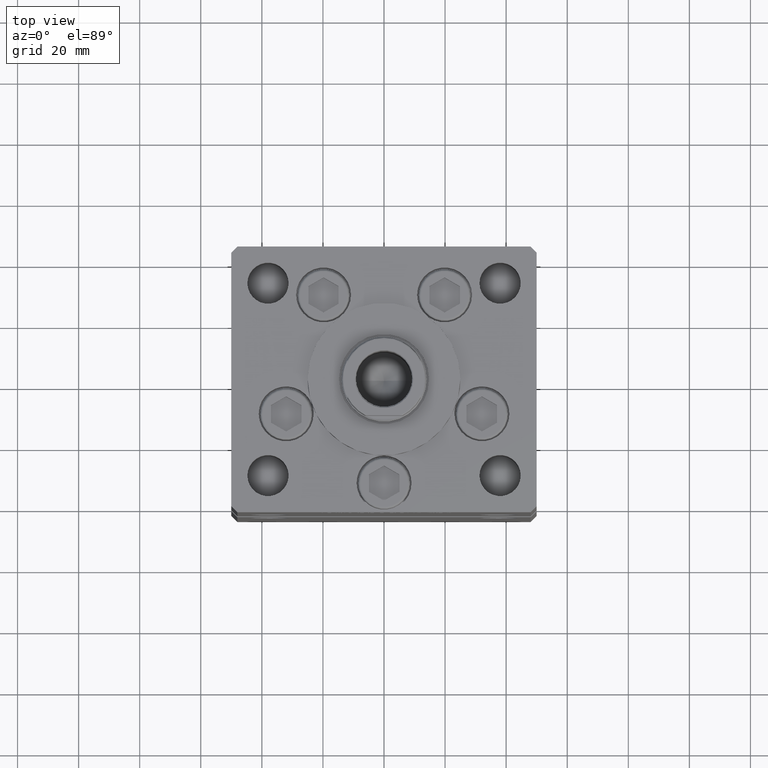
[diagram: clean part render]
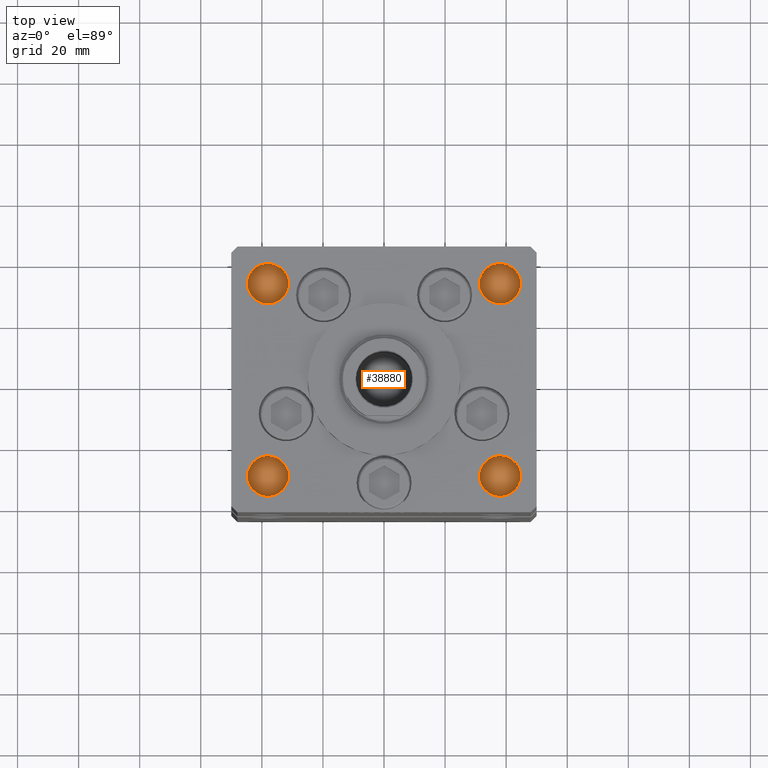
[diagram: same view with one face highlighted and labeled with its STEP entity id]
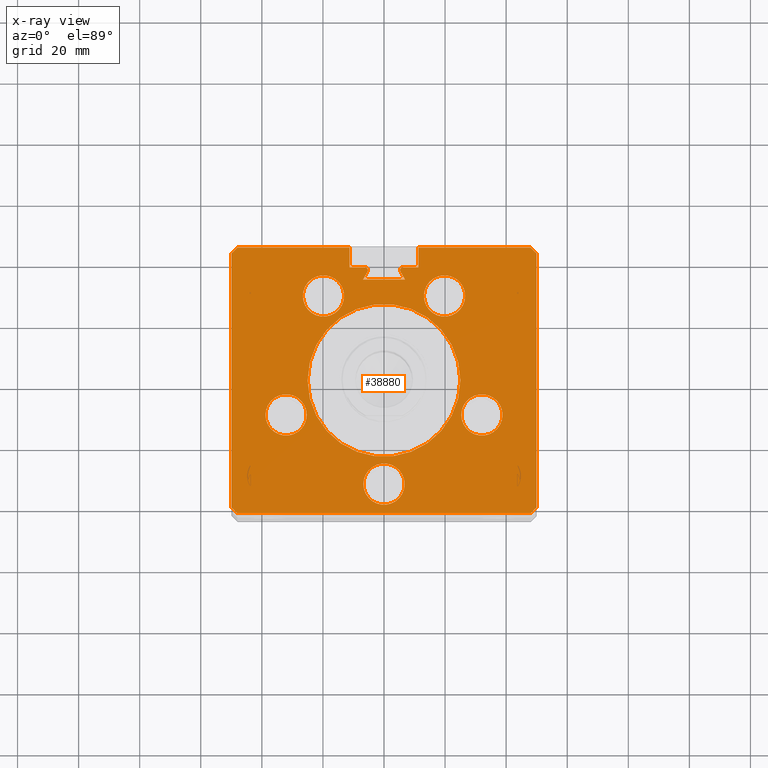
[diagram: x-ray of the same camera — body ghosted, the highlighted face saturated]
A machine part, top view. The second image highlights one B-rep face of the part: STEP entity #38880.
The next image is the same camera in x-ray: the body ghosted, the highlighted face saturated — about 0% of this face is hidden behind the body in this view.
In plain terms, the highlighted planar face has unit normal (0, 0, -1).
Its self-contained STEP definition (entity closure, byte-faithful):
#438 = CARTESIAN_POINT ( 'NONE',  ( -6.876153656360465050, 32.99999999999986500, 148.5000000000000000 ) ) ;
#789 = ORIENTED_EDGE ( 'NONE', *, *, #37830, .F. ) ;
#835 = LINE ( 'NONE', #25566, #28087 ) ;
#1182 = DIRECTION ( 'NONE',  ( 1.000000000000000000, 0.000000000000000000, 0.000000000000000000 ) ) ;
#1229 = VECTOR ( 'NONE', #19235, 1000.000000000000000 ) ;
#2079 = AXIS2_PLACEMENT_3D ( 'NONE', #28717, #45159, #4236 ) ;
#2138 = DIRECTION ( 'NONE',  ( -0.000000000000000000, 0.000000000000000000, 1.000000000000000000 ) ) ;
#2285 = CARTESIAN_POINT ( 'NONE',  ( 0.000000000000000000, 0.000000000000000000, 148.5000000000000000 ) ) ;
#2810 = DIRECTION ( 'NONE',  ( 1.000000000000000000, 0.000000000000000000, 0.000000000000000000 ) ) ;
#2826 = LINE ( 'NONE', #19509, #1229 ) ;
#2988 = DIRECTION ( 'NONE',  ( 0.000000000000000000, 0.000000000000000000, -1.000000000000000000 ) ) ;
#3041 = AXIS2_PLACEMENT_3D ( 'NONE', #29740, #46171, #41597 ) ;
#3063 = VERTEX_POINT ( 'NONE', #47047 ) ;
#3075 = ORIENTED_EDGE ( 'NONE', *, *, #32994, .F. ) ;
#3082 = EDGE_CURVE ( 'NONE', #47106, #15267, #10176, .T. ) ;
#3213 = CARTESIAN_POINT ( 'NONE',  ( 11.24999999999999645, 37.00000000000000000, 148.5000000000000000 ) ) ;
#3293 = CARTESIAN_POINT ( 'NONE',  ( -25.30550741379015278, -11.33333333333334458, 148.5000000000000000 ) ) ;
#3343 = FACE_BOUND ( 'NONE', #10527, .T. ) ;
#3938 = DIRECTION ( 'NONE',  ( 1.000000000000000000, 0.000000000000000000, 0.000000000000000000 ) ) ;
#4044 = CARTESIAN_POINT ( 'NONE',  ( -5.375042956467946276, 35.59999999999899245, 148.5000000000000000 ) ) ;
#4173 = EDGE_CURVE ( 'NONE', #14696, #15729, #2826, .T. ) ;
#4236 = DIRECTION ( 'NONE',  ( 1.000000000000000000, 0.000000000000000000, 0.000000000000000000 ) ) ;
#4310 = LINE ( 'NONE', #12659, #35891 ) ;
#5100 = VECTOR ( 'NONE', #47616, 1000.000000000000000 ) ;
#5326 = EDGE_CURVE ( 'NONE', #46769, #22744, #23353, .T. ) ;
#5697 = CARTESIAN_POINT ( 'NONE',  ( -19.44653440471351757, 11.22746187336663404, 148.5000000000000000 ) ) ;
#5771 = CARTESIAN_POINT ( 'NONE',  ( 25.30550741379015278, -11.33333333333334103, 148.5000000000000000 ) ) ;
#5856 = DIRECTION ( 'NONE',  ( 1.000000000000000000, 0.000000000000000000, 0.000000000000000000 ) ) ;
#6442 = CARTESIAN_POINT ( 'NONE',  ( 6.183333333333996151, 37.00000000000000000, 148.5000000000000000 ) ) ;
#6956 = CIRCLE ( 'NONE', #44758, 6.749999999999999112 ) ;
#7225 = EDGE_CURVE ( 'NONE', #21145, #34570, #19446, .T. ) ;
#7274 = CARTESIAN_POINT ( 'NONE',  ( 49.99999999999998579, -41.49999999999999289, 148.5000000000000000 ) ) ;
#7376 = CARTESIAN_POINT ( 'NONE',  ( 19.82068048781374259, 27.62500000000000000, 148.5000000000000000 ) ) ;
#7656 = ORIENTED_EDGE ( 'NONE', *, *, #52000, .T. ) ;
#7793 = VERTEX_POINT ( 'NONE', #438 ) ;
#7954 = LINE ( 'NONE', #21373, #48373 ) ;
#8079 = VECTOR ( 'NONE', #29245, 1000.000000000000000 ) ;
#8224 = CIRCLE ( 'NONE', #3041, 6.749999999999999112 ) ;
#8543 = CARTESIAN_POINT ( 'NONE',  ( 0.000000000000000000, 32.99999999999986500, 148.5000000000000000 ) ) ;
#8602 = CARTESIAN_POINT ( 'NONE',  ( -49.99999999999998579, -41.49999999999999289, 148.5000000000000000 ) ) ;
#8701 = FACE_BOUND ( 'NONE', #13803, .T. ) ;
#9042 = ORIENTED_EDGE ( 'NONE', *, *, #10499, .T. ) ;
#9445 = CARTESIAN_POINT ( 'NONE',  ( 6.876153656360465050, 32.99999999999986500, 148.5000000000000000 ) ) ;
#9735 = LINE ( 'NONE', #5697, #12675 ) ;
#10009 = CARTESIAN_POINT ( 'NONE',  ( -47.99999999999998579, -43.50000000000000000, 148.5000000000000000 ) ) ;
#10057 = CARTESIAN_POINT ( 'NONE',  ( -11.24999999999999645, 37.00000000000000000, 148.5000000000000000 ) ) ;
#10106 = ORIENTED_EDGE ( 'NONE', *, *, #11907, .F. ) ;
#10176 = LINE ( 'NONE', #42750, #47596 ) ;
#10487 = EDGE_CURVE ( 'NONE', #36071, #16057, #24429, .T. ) ;
#10499 = EDGE_CURVE ( 'NONE', #15267, #44690, #20645, .T. ) ;
#10527 = EDGE_LOOP ( 'NONE', ( #15861, #32138 ) ) ;
#10718 = DIRECTION ( 'NONE',  ( -3.344045254895050973E-16, -1.000000000000000000, 0.000000000000000000 ) ) ;
#10724 = CARTESIAN_POINT ( 'NONE',  ( 2.081899558550500280E-15, -34.00000000000000000, 148.5000000000000000 ) ) ;
#10990 = VECTOR ( 'NONE', #31509, 1000.000000000000114 ) ;
#11304 = DIRECTION ( 'NONE',  ( -0.7071067811865474617, -0.7071067811865474617, 0.000000000000000000 ) ) ;
#11399 = DIRECTION ( 'NONE',  ( 1.000000000000000000, 0.000000000000000000, 0.000000000000000000 ) ) ;
#11416 = FACE_BOUND ( 'NONE', #18073, .T. ) ;
#11514 = DIRECTION ( 'NONE',  ( -0.000000000000000000, -1.000000000000000000, 0.000000000000000000 ) ) ;
#11568 = AXIS2_PLACEMENT_3D ( 'NONE', #14504, #2138, #47346 ) ;
#11589 = DIRECTION ( 'NONE',  ( 0.4999999999999987788, 0.8660254037844392627, 0.000000000000000000 ) ) ;
#11907 = EDGE_CURVE ( 'NONE', #34570, #21145, #16698, .T. ) ;
#12210 = DIRECTION ( 'NONE',  ( 0.000000000000000000, 0.000000000000000000, -1.000000000000000000 ) ) ;
#12370 = DIRECTION ( 'NONE',  ( 1.000000000000000000, 0.000000000000000000, 0.000000000000000000 ) ) ;
#12659 = CARTESIAN_POINT ( 'NONE',  ( -11.24999999999999645, 43.50000000000000000, 148.5000000000000000 ) ) ;
#12675 = VECTOR ( 'NONE', #11589, 1000.000000000000114 ) ;
#12847 = CARTESIAN_POINT ( 'NONE',  ( -6.749999999999997335, -34.00000000000000000, 148.5000000000000000 ) ) ;
#12999 = DIRECTION ( 'NONE',  ( -1.000000000000000000, 0.000000000000000000, -0.000000000000000000 ) ) ;
#13537 = EDGE_CURVE ( 'NONE', #38013, #28192, #8224, .T. ) ;
#13560 = CARTESIAN_POINT ( 'NONE',  ( -5.249999999999995559, 36.06666666666599497, 148.5000000000000000 ) ) ;
#13569 = CARTESIAN_POINT ( 'NONE',  ( -13.07068048781374259, 27.62499999999999645, 148.5000000000000000 ) ) ;
#13803 = EDGE_LOOP ( 'NONE', ( #50861, #10106 ) ) ;
#13920 = DIRECTION ( 'NONE',  ( 0.000000000000000000, 0.000000000000000000, 1.000000000000000000 ) ) ;
#13981 = CARTESIAN_POINT ( 'NONE',  ( 0.000000000000000000, 37.00000000000000000, 148.5000000000000000 ) ) ;
#14412 = ORIENTED_EDGE ( 'NONE', *, *, #3082, .T. ) ;
#14457 = AXIS2_PLACEMENT_3D ( 'NONE', #45668, #41367, #33028 ) ;
#14504 = CARTESIAN_POINT ( 'NONE',  ( 0.000000000000000000, 0.000000000000000000, 148.5000000000000000 ) ) ;
#14667 = CARTESIAN_POINT ( 'NONE',  ( -11.24999999999999645, 43.50000000000000000, 148.5000000000000000 ) ) ;
#14696 = VERTEX_POINT ( 'NONE', #47579 ) ;
#14744 = CARTESIAN_POINT ( 'NONE',  ( 50.00000000000001421, 41.49999999999999289, 148.5000000000000000 ) ) ;
#15267 = VERTEX_POINT ( 'NONE', #10057 ) ;
#15375 = DIRECTION ( 'NONE',  ( 1.000000000000000000, 0.000000000000000000, 0.000000000000000000 ) ) ;
#15426 = ORIENTED_EDGE ( 'NONE', *, *, #5326, .F. ) ;
#15638 = CARTESIAN_POINT ( 'NONE',  ( -26.57068048781373903, 27.62499999999999645, 148.5000000000000000 ) ) ;
#15729 = VERTEX_POINT ( 'NONE', #8602 ) ;
#15861 = ORIENTED_EDGE ( 'NONE', *, *, #44306, .F. ) ;
#15985 = CIRCLE ( 'NONE', #33196, 6.749999999999999112 ) ;
#16057 = VERTEX_POINT ( 'NONE', #5771 ) ;
#16402 = DIRECTION ( 'NONE',  ( 0.000000000000000000, 0.000000000000000000, 1.000000000000000000 ) ) ;
#16698 = CIRCLE ( 'NONE', #11568, 25.00000000000000000 ) ;
#16767 = EDGE_LOOP ( 'NONE', ( #18177, #31098 ) ) ;
#17145 = VECTOR ( 'NONE', #24938, 1000.000000000000000 ) ;
#17315 = ORIENTED_EDGE ( 'NONE', *, *, #36582, .F. ) ;
#17728 = AXIS2_PLACEMENT_3D ( 'NONE', #49086, #12210, #2810 ) ;
#17893 = VECTOR ( 'NONE', #25983, 1000.000000000000000 ) ;
#18073 = EDGE_LOOP ( 'NONE', ( #17315, #3075 ) ) ;
#18086 = ORIENTED_EDGE ( 'NONE', *, *, #29255, .T. ) ;
#18177 = ORIENTED_EDGE ( 'NONE', *, *, #10487, .F. ) ;
#18688 = DIRECTION ( 'NONE',  ( -0.000000000000000000, 0.000000000000000000, 1.000000000000000000 ) ) ;
#18957 = ORIENTED_EDGE ( 'NONE', *, *, #23566, .T. ) ;
#19235 = DIRECTION ( 'NONE',  ( 3.344045254895050973E-16, -1.000000000000000000, 0.000000000000000000 ) ) ;
#19256 = ORIENTED_EDGE ( 'NONE', *, *, #52184, .T. ) ;
#19446 = CIRCLE ( 'NONE', #49539, 25.00000000000000000 ) ;
#19509 = CARTESIAN_POINT ( 'NONE',  ( -50.00000000000001421, 41.49999999999999289, 148.5000000000000000 ) ) ;
#20233 = CARTESIAN_POINT ( 'NONE',  ( 38.80550741379015278, -11.33333333333334103, 148.5000000000000000 ) ) ;
#20237 = AXIS2_PLACEMENT_3D ( 'NONE', #50699, #34275, #1182 ) ;
#20274 = CARTESIAN_POINT ( 'NONE',  ( 0.000000000000000000, 0.000000000000000000, 148.5000000000000000 ) ) ;
#20645 = LINE ( 'NONE', #37072, #8079 ) ;
#20795 = PLANE ( 'NONE',  #23464 ) ;
#20846 = ORIENTED_EDGE ( 'NONE', *, *, #45857, .F. ) ;
#20956 = CARTESIAN_POINT ( 'NONE',  ( 5.375042956467946276, 35.59999999999899245, 148.5000000000000000 ) ) ;
#21145 = VERTEX_POINT ( 'NONE', #44915 ) ;
#21373 = CARTESIAN_POINT ( 'NONE',  ( 48.00000000000000711, 43.50000000000000000, 148.5000000000000000 ) ) ;
#21453 = CARTESIAN_POINT ( 'NONE',  ( 6.750000000000000888, -34.00000000000000000, 148.5000000000000000 ) ) ;
#22077 = VECTOR ( 'NONE', #3938, 1000.000000000000000 ) ;
#22589 = VERTEX_POINT ( 'NONE', #20956 ) ;
#22641 = ORIENTED_EDGE ( 'NONE', *, *, #26418, .F. ) ;
#22744 = VERTEX_POINT ( 'NONE', #49448 ) ;
#22805 = EDGE_CURVE ( 'NONE', #39498, #43792, #32233, .T. ) ;
#23353 = LINE ( 'NONE', #14744, #31336 ) ;
#23464 = AXIS2_PLACEMENT_3D ( 'NONE', #20274, #29144, #12999 ) ;
#23566 = EDGE_CURVE ( 'NONE', #7793, #41872, #9735, .T. ) ;
#23673 = CARTESIAN_POINT ( 'NONE',  ( -47.99999999999998579, -43.50000000000000000, 148.5000000000000000 ) ) ;
#23724 = EDGE_CURVE ( 'NONE', #15729, #28083, #43906, .T. ) ;
#23796 = FACE_BOUND ( 'NONE', #16767, .T. ) ;
#23965 = AXIS2_PLACEMENT_3D ( 'NONE', #7376, #27811, #11399 ) ;
#24359 = DIRECTION ( 'NONE',  ( 0.000000000000000000, 0.000000000000000000, 1.000000000000000000 ) ) ;
#24429 = CIRCLE ( 'NONE', #2079, 6.749999999999999112 ) ;
#24488 = CARTESIAN_POINT ( 'NONE',  ( 6.183333333333996151, 36.06666666666599497, 148.5000000000000000 ) ) ;
#24635 = EDGE_CURVE ( 'NONE', #39498, #30310, #4310, .T. ) ;
#24938 = DIRECTION ( 'NONE',  ( -1.000000000000000000, 0.000000000000000000, 0.000000000000000000 ) ) ;
#25012 = DIRECTION ( 'NONE',  ( 1.000000000000000000, 0.000000000000000000, 0.000000000000000000 ) ) ;
#25092 = EDGE_CURVE ( 'NONE', #22744, #3063, #36853, .T. ) ;
#25566 = CARTESIAN_POINT ( 'NONE',  ( 19.44653440471351757, 11.22746187336663404, 148.5000000000000000 ) ) ;
#25634 = CIRCLE ( 'NONE', #14457, 0.9333333333339999260 ) ;
#25681 = CIRCLE ( 'NONE', #23965, 6.749999999999999112 ) ;
#25736 = EDGE_CURVE ( 'NONE', #30294, #44690, #42955, .T. ) ;
#25793 = CARTESIAN_POINT ( 'NONE',  ( -32.05550741379015278, -11.33333333333334458, 148.5000000000000000 ) ) ;
#25983 = DIRECTION ( 'NONE',  ( 1.000000000000000000, 0.000000000000000000, 0.000000000000000000 ) ) ;
#26029 = CARTESIAN_POINT ( 'NONE',  ( -48.00000000000000711, 43.50000000000000000, 148.5000000000000000 ) ) ;
#26161 = VERTEX_POINT ( 'NONE', #40191 ) ;
#26418 = EDGE_CURVE ( 'NONE', #41415, #41872, #25634, .T. ) ;
#26756 = ORIENTED_EDGE ( 'NONE', *, *, #33092, .F. ) ;
#27128 = DIRECTION ( 'NONE',  ( 0.000000000000000000, 0.000000000000000000, 1.000000000000000000 ) ) ;
#27566 = CARTESIAN_POINT ( 'NONE',  ( 11.24999999999998934, 43.50000000000000000, 148.5000000000000000 ) ) ;
#27707 = VERTEX_POINT ( 'NONE', #12847 ) ;
#27811 = DIRECTION ( 'NONE',  ( 0.000000000000000000, 0.000000000000000000, 1.000000000000000000 ) ) ;
#27828 = FACE_BOUND ( 'NONE', #46798, .T. ) ;
#27884 = EDGE_CURVE ( 'NONE', #26161, #37987, #25681, .T. ) ;
#28083 = VERTEX_POINT ( 'NONE', #10009 ) ;
#28087 = VECTOR ( 'NONE', #45258, 1000.000000000000114 ) ;
#28192 = VERTEX_POINT ( 'NONE', #15638 ) ;
#28201 = LINE ( 'NONE', #8543, #17145 ) ;
#28234 = EDGE_CURVE ( 'NONE', #22589, #43749, #29998, .T. ) ;
#28271 = CARTESIAN_POINT ( 'NONE',  ( -49.99999999999998579, -41.49999999999999289, 148.5000000000000000 ) ) ;
#28657 = DIRECTION ( 'NONE',  ( 0.7071067811865487940, -0.7071067811865463515, 0.000000000000000000 ) ) ;
#28717 = CARTESIAN_POINT ( 'NONE',  ( 32.05550741379015278, -11.33333333333334103, 148.5000000000000000 ) ) ;
#29144 = DIRECTION ( 'NONE',  ( 0.000000000000000000, 0.000000000000000000, -1.000000000000000000 ) ) ;
#29245 = DIRECTION ( 'NONE',  ( 0.000000000000000000, 1.000000000000000000, 0.000000000000000000 ) ) ;
#29252 = AXIS2_PLACEMENT_3D ( 'NONE', #49397, #24359, #45102 ) ;
#29255 = EDGE_CURVE ( 'NONE', #43792, #43749, #34965, .T. ) ;
#29295 = CARTESIAN_POINT ( 'NONE',  ( 50.00000000000001421, 41.49999999999999289, 148.5000000000000000 ) ) ;
#29447 = EDGE_CURVE ( 'NONE', #28192, #38013, #33455, .T. ) ;
#29740 = CARTESIAN_POINT ( 'NONE',  ( -19.82068048781374259, 27.62499999999999645, 148.5000000000000000 ) ) ;
#29998 = CIRCLE ( 'NONE', #47175, 0.9333333333339999260 ) ;
#30294 = VERTEX_POINT ( 'NONE', #51378 ) ;
#30310 = VERTEX_POINT ( 'NONE', #30566 ) ;
#30342 = DIRECTION ( 'NONE',  ( -0.7071067811865487940, -0.7071067811865463515, 0.000000000000000000 ) ) ;
#30566 = CARTESIAN_POINT ( 'NONE',  ( 48.00000000000000711, 43.50000000000000000, 148.5000000000000000 ) ) ;
#30807 = VECTOR ( 'NONE', #11514, 1000.000000000000000 ) ;
#30948 = ORIENTED_EDGE ( 'NONE', *, *, #22805, .T. ) ;
#30987 = CIRCLE ( 'NONE', #40461, 6.749999999999999112 ) ;
#31032 = EDGE_CURVE ( 'NONE', #52028, #7793, #28201, .T. ) ;
#31098 = ORIENTED_EDGE ( 'NONE', *, *, #32326, .F. ) ;
#31336 = VECTOR ( 'NONE', #10718, 1000.000000000000000 ) ;
#31509 = DIRECTION ( 'NONE',  ( 0.7071067811865474617, -0.7071067811865474617, 0.000000000000000000 ) ) ;
#32138 = ORIENTED_EDGE ( 'NONE', *, *, #27884, .F. ) ;
#32233 = LINE ( 'NONE', #48662, #30807 ) ;
#32274 = CIRCLE ( 'NONE', #20237, 6.749999999999999112 ) ;
#32326 = EDGE_CURVE ( 'NONE', #16057, #36071, #52486, .T. ) ;
#32994 = EDGE_CURVE ( 'NONE', #52606, #51881, #6956, .T. ) ;
#33028 = DIRECTION ( 'NONE',  ( 1.000000000000000000, 0.000000000000000000, 0.000000000000000000 ) ) ;
#33092 = EDGE_CURVE ( 'NONE', #27707, #43860, #30987, .T. ) ;
#33115 = DIRECTION ( 'NONE',  ( 1.000000000000000000, 0.000000000000000000, 0.000000000000000000 ) ) ;
#33196 = AXIS2_PLACEMENT_3D ( 'NONE', #10724, #27128, #44099 ) ;
#33455 = CIRCLE ( 'NONE', #45490, 6.749999999999999112 ) ;
#34065 = CIRCLE ( 'NONE', #17728, 0.9333333333339999260 ) ;
#34275 = DIRECTION ( 'NONE',  ( 0.000000000000000000, 0.000000000000000000, 1.000000000000000000 ) ) ;
#34570 = VERTEX_POINT ( 'NONE', #46842 ) ;
#34661 = DIRECTION ( 'NONE',  ( -1.000000000000000000, 0.000000000000000000, 0.000000000000000000 ) ) ;
#34965 = LINE ( 'NONE', #13981, #5100 ) ;
#35891 = VECTOR ( 'NONE', #25012, 1000.000000000000000 ) ;
#36071 = VERTEX_POINT ( 'NONE', #20233 ) ;
#36117 = ORIENTED_EDGE ( 'NONE', *, *, #28234, .F. ) ;
#36194 = CARTESIAN_POINT ( 'NONE',  ( -38.80550741379015278, -11.33333333333334458, 148.5000000000000000 ) ) ;
#36304 = AXIS2_PLACEMENT_3D ( 'NONE', #25793, #16402, #12370 ) ;
#36582 = EDGE_CURVE ( 'NONE', #51881, #52606, #42285, .T. ) ;
#36853 = LINE ( 'NONE', #7274, #48843 ) ;
#37072 = CARTESIAN_POINT ( 'NONE',  ( -11.24999999999999645, 0.000000000000000000, 148.5000000000000000 ) ) ;
#37626 = LINE ( 'NONE', #26029, #39225 ) ;
#37830 = EDGE_CURVE ( 'NONE', #30310, #46769, #7954, .T. ) ;
#37987 = VERTEX_POINT ( 'NONE', #46414 ) ;
#38013 = VERTEX_POINT ( 'NONE', #13569 ) ;
#38105 = ORIENTED_EDGE ( 'NONE', *, *, #25092, .F. ) ;
#38880 = ADVANCED_FACE ( 'NONE', ( #11416, #27828, #23796, #3343, #53131, #49611, #8701 ), #20795, .F. ) ;
#39225 = VECTOR ( 'NONE', #30342, 1000.000000000000000 ) ;
#39498 = VERTEX_POINT ( 'NONE', #27566 ) ;
#39967 = DIRECTION ( 'NONE',  ( 1.000000000000000000, 0.000000000000000000, 0.000000000000000000 ) ) ;
#40191 = CARTESIAN_POINT ( 'NONE',  ( 13.07068048781374081, 27.62500000000000000, 148.5000000000000000 ) ) ;
#40461 = AXIS2_PLACEMENT_3D ( 'NONE', #41713, #46553, #42511 ) ;
#41202 = CARTESIAN_POINT ( 'NONE',  ( -32.05550741379015278, -11.33333333333334458, 148.5000000000000000 ) ) ;
#41367 = DIRECTION ( 'NONE',  ( 0.000000000000000000, 0.000000000000000000, -1.000000000000000000 ) ) ;
#41415 = VERTEX_POINT ( 'NONE', #13560 ) ;
#41597 = DIRECTION ( 'NONE',  ( 1.000000000000000000, 0.000000000000000000, 0.000000000000000000 ) ) ;
#41713 = CARTESIAN_POINT ( 'NONE',  ( 2.081899558550500280E-15, -34.00000000000000000, 148.5000000000000000 ) ) ;
#41872 = VERTEX_POINT ( 'NONE', #4044 ) ;
#41928 = ORIENTED_EDGE ( 'NONE', *, *, #25736, .F. ) ;
#42184 = EDGE_LOOP ( 'NONE', ( #50852, #49481 ) ) ;
#42285 = CIRCLE ( 'NONE', #36304, 6.749999999999999112 ) ;
#42511 = DIRECTION ( 'NONE',  ( 1.000000000000000000, 0.000000000000000000, 0.000000000000000000 ) ) ;
#42750 = CARTESIAN_POINT ( 'NONE',  ( 0.000000000000000000, 37.00000000000000000, 148.5000000000000000 ) ) ;
#42955 = LINE ( 'NONE', #14667, #17893 ) ;
#43749 = VERTEX_POINT ( 'NONE', #6442 ) ;
#43792 = VERTEX_POINT ( 'NONE', #3213 ) ;
#43860 = VERTEX_POINT ( 'NONE', #21453 ) ;
#43906 = LINE ( 'NONE', #28271, #10990 ) ;
#43981 = ORIENTED_EDGE ( 'NONE', *, *, #50781, .F. ) ;
#44099 = DIRECTION ( 'NONE',  ( 1.000000000000000000, 0.000000000000000000, 0.000000000000000000 ) ) ;
#44306 = EDGE_CURVE ( 'NONE', #37987, #26161, #32274, .T. ) ;
#44690 = VERTEX_POINT ( 'NONE', #46857 ) ;
#44758 = AXIS2_PLACEMENT_3D ( 'NONE', #41202, #45237, #33115 ) ;
#44915 = CARTESIAN_POINT ( 'NONE',  ( -25.00000000000000000, 0.000000000000000000, 148.5000000000000000 ) ) ;
#45102 = DIRECTION ( 'NONE',  ( 1.000000000000000000, 0.000000000000000000, 0.000000000000000000 ) ) ;
#45159 = DIRECTION ( 'NONE',  ( 0.000000000000000000, 0.000000000000000000, 1.000000000000000000 ) ) ;
#45237 = DIRECTION ( 'NONE',  ( 0.000000000000000000, 0.000000000000000000, 1.000000000000000000 ) ) ;
#45258 = DIRECTION ( 'NONE',  ( 0.4999999999999987788, -0.8660254037844392627, 0.000000000000000000 ) ) ;
#45490 = AXIS2_PLACEMENT_3D ( 'NONE', #50812, #13920, #5856 ) ;
#45668 = CARTESIAN_POINT ( 'NONE',  ( -6.183333333333996151, 36.06666666666599497, 148.5000000000000000 ) ) ;
#45803 = ORIENTED_EDGE ( 'NONE', *, *, #31032, .T. ) ;
#45857 = EDGE_CURVE ( 'NONE', #43860, #27707, #15985, .T. ) ;
#46171 = DIRECTION ( 'NONE',  ( 0.000000000000000000, 0.000000000000000000, 1.000000000000000000 ) ) ;
#46414 = CARTESIAN_POINT ( 'NONE',  ( 26.57068048781373903, 27.62500000000000000, 148.5000000000000000 ) ) ;
#46553 = DIRECTION ( 'NONE',  ( 0.000000000000000000, 0.000000000000000000, 1.000000000000000000 ) ) ;
#46769 = VERTEX_POINT ( 'NONE', #29295 ) ;
#46798 = EDGE_LOOP ( 'NONE', ( #20846, #26756 ) ) ;
#46842 = CARTESIAN_POINT ( 'NONE',  ( 25.00000000000000000, 3.061616997868383043E-15, 148.5000000000000000 ) ) ;
#46857 = CARTESIAN_POINT ( 'NONE',  ( -11.24999999999999645, 43.50000000000000000, 148.5000000000000000 ) ) ;
#47047 = CARTESIAN_POINT ( 'NONE',  ( 47.99999999999998579, -43.50000000000000000, 148.5000000000000000 ) ) ;
#47106 = VERTEX_POINT ( 'NONE', #53226 ) ;
#47175 = AXIS2_PLACEMENT_3D ( 'NONE', #24488, #2988, #15375 ) ;
#47346 = DIRECTION ( 'NONE',  ( 1.000000000000000000, 0.000000000000000000, 0.000000000000000000 ) ) ;
#47579 = CARTESIAN_POINT ( 'NONE',  ( -50.00000000000001421, 41.49999999999999289, 148.5000000000000000 ) ) ;
#47596 = VECTOR ( 'NONE', #34661, 1000.000000000000000 ) ;
#47616 = DIRECTION ( 'NONE',  ( -1.000000000000000000, 0.000000000000000000, 0.000000000000000000 ) ) ;
#47639 = EDGE_LOOP ( 'NONE', ( #14412, #9042, #41928, #49670, #50895, #49399, #19256, #38105, #15426, #789, #49276, #30948, #18086, #36117, #7656, #45803, #18957, #22641, #43981 ) ) ;
#48373 = VECTOR ( 'NONE', #28657, 1000.000000000000000 ) ;
#48662 = CARTESIAN_POINT ( 'NONE',  ( 11.24999999999999645, 0.000000000000000000, 148.5000000000000000 ) ) ;
#48843 = VECTOR ( 'NONE', #11304, 1000.000000000000114 ) ;
#49086 = CARTESIAN_POINT ( 'NONE',  ( -6.183333333333996151, 36.06666666666599497, 148.5000000000000000 ) ) ;
#49276 = ORIENTED_EDGE ( 'NONE', *, *, #24635, .F. ) ;
#49397 = CARTESIAN_POINT ( 'NONE',  ( 32.05550741379015278, -11.33333333333334103, 148.5000000000000000 ) ) ;
#49399 = ORIENTED_EDGE ( 'NONE', *, *, #23724, .T. ) ;
#49448 = CARTESIAN_POINT ( 'NONE',  ( 49.99999999999998579, -41.49999999999999289, 148.5000000000000000 ) ) ;
#49481 = ORIENTED_EDGE ( 'NONE', *, *, #29447, .F. ) ;
#49539 = AXIS2_PLACEMENT_3D ( 'NONE', #2285, #18688, #39967 ) ;
#49611 = FACE_OUTER_BOUND ( 'NONE', #47639, .T. ) ;
#49670 = ORIENTED_EDGE ( 'NONE', *, *, #51100, .T. ) ;
#50699 = CARTESIAN_POINT ( 'NONE',  ( 19.82068048781374259, 27.62500000000000000, 148.5000000000000000 ) ) ;
#50781 = EDGE_CURVE ( 'NONE', #47106, #41415, #34065, .T. ) ;
#50812 = CARTESIAN_POINT ( 'NONE',  ( -19.82068048781374259, 27.62499999999999645, 148.5000000000000000 ) ) ;
#50852 = ORIENTED_EDGE ( 'NONE', *, *, #13537, .F. ) ;
#50861 = ORIENTED_EDGE ( 'NONE', *, *, #7225, .F. ) ;
#50895 = ORIENTED_EDGE ( 'NONE', *, *, #4173, .T. ) ;
#51100 = EDGE_CURVE ( 'NONE', #30294, #14696, #37626, .T. ) ;
#51378 = CARTESIAN_POINT ( 'NONE',  ( -48.00000000000000711, 43.50000000000000000, 148.5000000000000000 ) ) ;
#51881 = VERTEX_POINT ( 'NONE', #3293 ) ;
#52000 = EDGE_CURVE ( 'NONE', #22589, #52028, #835, .T. ) ;
#52028 = VERTEX_POINT ( 'NONE', #9445 ) ;
#52184 = EDGE_CURVE ( 'NONE', #28083, #3063, #53204, .T. ) ;
#52486 = CIRCLE ( 'NONE', #29252, 6.749999999999999112 ) ;
#52606 = VERTEX_POINT ( 'NONE', #36194 ) ;
#53131 = FACE_BOUND ( 'NONE', #42184, .T. ) ;
#53204 = LINE ( 'NONE', #23673, #22077 ) ;
#53226 = CARTESIAN_POINT ( 'NONE',  ( -6.183333333333996151, 37.00000000000000000, 148.5000000000000000 ) ) ;